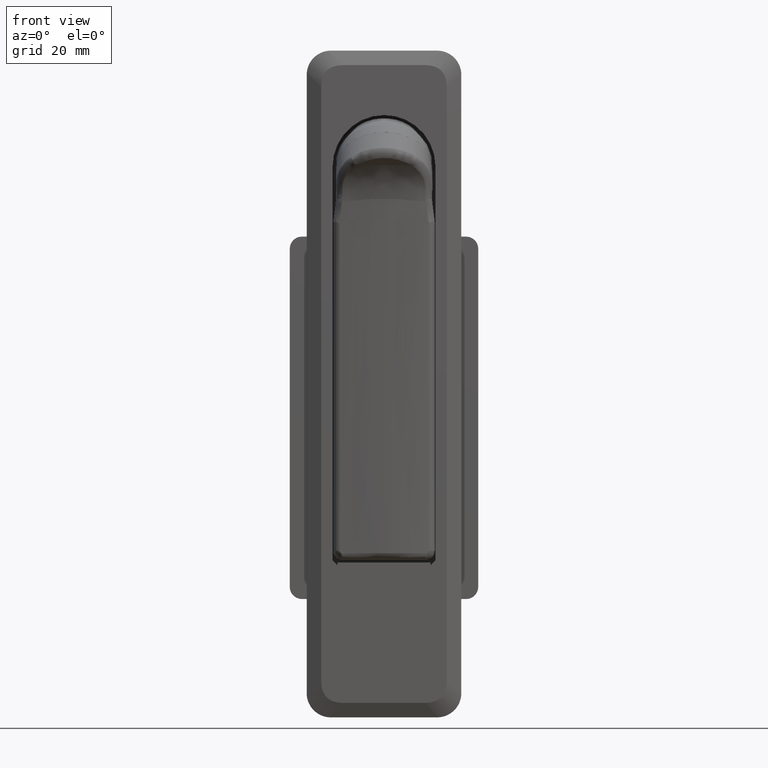
[diagram: clean part render]
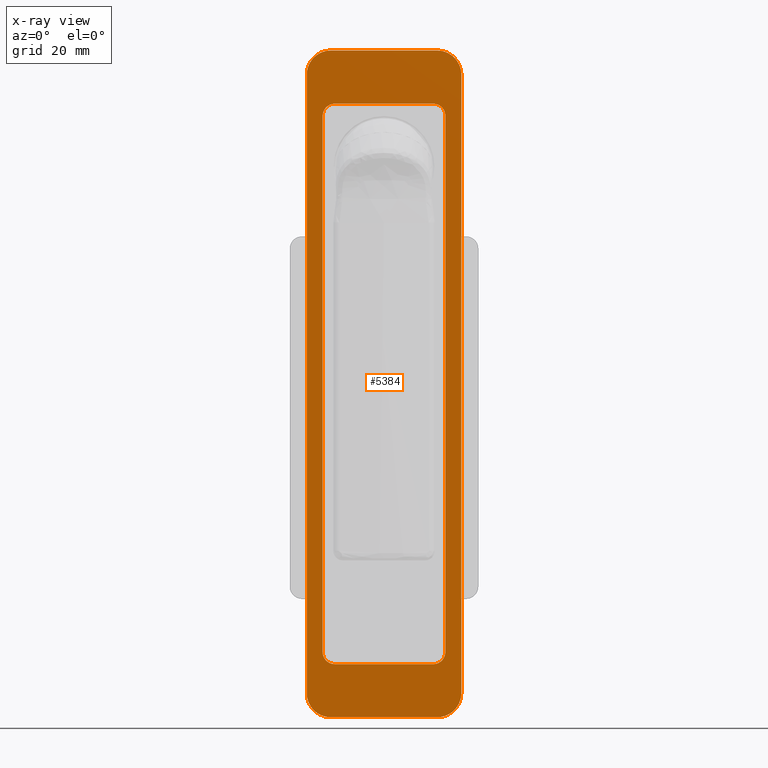
[diagram: x-ray — body ghosted, one internal face saturated and labeled with its STEP entity id]
A machine part, front view, then the same camera in x-ray: the body is ghosted and one INTERNAL B-rep face — a face not visible from any outside direction — is saturated and labeled: STEP entity #5384.
In plain terms, the highlighted face is a freeform B-spline surface patch.
Its self-contained STEP definition (entity closure, byte-faithful):
#5208=CARTESIAN_POINT('',(2.999999999999915,-17.595249787618670,30.893099732529219));
#5209=CARTESIAN_POINT('',(2.999999999999915,17.598250931920550,30.893099732529219));
#5210=CARTESIAN_POINT('',(2.999999999999915,-17.595249787618659,-120.893103433977700));
#5211=CARTESIAN_POINT('',(2.999999999999915,17.598250931920550,-120.893103433977700));
#5212=B_SPLINE_SURFACE_WITH_KNOTS('',1,1,((#5208,#5210),(#5209,#5211)),.UNSPECIFIED.,.F.,.F.,.U.,(2,2),(2,2),(0.0,35.193500719539223),(0.0,151.786203166506910),.UNSPECIFIED.);
#5213=CARTESIAN_POINT('',(2.999999999999890,11.0,24.0));
#5214=VERTEX_POINT('',#5213);
#5215=CARTESIAN_POINT('',(2.999999999999890,-10.997000000000000,24.0));
#5216=VERTEX_POINT('',#5215);
#5217=CARTESIAN_POINT('',(2.999999999999890,11.0,24.0));
#5218=CARTESIAN_POINT('',(2.999999999999890,-10.997000000000000,24.0));
#5219=QUASI_UNIFORM_CURVE('',1,(#5217,#5218),.UNSPECIFIED.,.F.,.U.);
#5220=EDGE_CURVE('',#5214,#5216,#5219,.T.);
#5221=ORIENTED_EDGE('',*,*,#5220,.F.);
#5222=CARTESIAN_POINT('',(2.999999999999890,16.0,19.0));
#5223=VERTEX_POINT('',#5222);
#5224=CARTESIAN_POINT('',(2.999999999999890,16.0,19.0));
#5225=CARTESIAN_POINT('',(2.999999999999889,16.000571567016330,19.613697073666000));
#5226=CARTESIAN_POINT('',(2.999999999999891,15.843671828743000,20.451873399650410));
#5227=CARTESIAN_POINT('',(2.999999999999892,15.359034720792231,21.492592761660799));
#5228=CARTESIAN_POINT('',(2.999999999999883,14.794906162483860,22.326103672136160));
#5229=CARTESIAN_POINT('',(2.999999999999884,13.851311290463631,23.192131924115259));
#5230=CARTESIAN_POINT('',(2.999999999999915,12.513399880389290,23.844938267273982));
#5231=CARTESIAN_POINT('',(2.999999999999855,11.511348883869161,24.000228408971729));
#5232=CARTESIAN_POINT('',(2.999999999999890,11.0,24.0));
#5233=B_SPLINE_CURVE_WITH_KNOTS('',3,(#5224,#5225,#5226,#5227,#5228,#5229,#5230,#5231,#5232),.UNSPECIFIED.,.F.,.U.,(4,1,1,1,1,1,4),(0.000000199399920,1.840786930647991,2.515760499670075,3.436181768674002,4.847402588958154,6.320053267888183,7.854030914395620),.UNSPECIFIED.);
#5234=EDGE_CURVE('',#5223,#5214,#5233,.T.);
#5235=ORIENTED_EDGE('',*,*,#5234,.F.);
#5236=CARTESIAN_POINT('',(2.999999999999890,16.0,-109.0));
#5237=VERTEX_POINT('',#5236);
#5238=CARTESIAN_POINT('',(2.999999999999890,16.0,-109.0));
#5239=CARTESIAN_POINT('',(2.999999999999890,16.0,19.0));
#5240=QUASI_UNIFORM_CURVE('',1,(#5238,#5239),.UNSPECIFIED.,.F.,.U.);
#5241=EDGE_CURVE('',#5237,#5223,#5240,.T.);
#5242=ORIENTED_EDGE('',*,*,#5241,.F.);
#5243=CARTESIAN_POINT('',(2.999999999999890,11.0,-114.0));
#5244=VERTEX_POINT('',#5243);
#5245=CARTESIAN_POINT('',(2.999999999999890,11.0,-114.0));
#5246=CARTESIAN_POINT('',(2.999999999999889,11.613683140174240,-114.000570364943400));
#5247=CARTESIAN_POINT('',(2.999999999999888,12.615456350106999,-113.813067655517400));
#5248=CARTESIAN_POINT('',(2.999999999999901,13.799719055128360,-113.189248925837700));
#5249=CARTESIAN_POINT('',(2.999999999999879,14.633165374511799,-112.487949782311200));
#5250=CARTESIAN_POINT('',(2.999999999999903,15.316893840324919,-111.611969548787900));
#5251=CARTESIAN_POINT('',(2.999999999999873,15.857546360165840,-110.431591287348700));
#5252=CARTESIAN_POINT('',(2.999999999999904,16.000252543264651,-109.511348914816790));
#5253=CARTESIAN_POINT('',(2.999999999999890,16.0,-109.0));
#5254=B_SPLINE_CURVE_WITH_KNOTS('',3,(#5245,#5246,#5247,#5248,#5249,#5250,#5251,#5252,#5253),.UNSPECIFIED.,.F.,.U.,(4,1,1,1,1,1,4),(0.000000199418378,1.840786930659601,3.006631394917318,3.988314212956000,5.092833224472594,6.320053267891053,7.854030914395530),.UNSPECIFIED.);
#5255=EDGE_CURVE('',#5244,#5237,#5254,.T.);
#5256=ORIENTED_EDGE('',*,*,#5255,.F.);
#5257=CARTESIAN_POINT('',(2.999999999999890,-10.997000000000000,-114.0));
#5258=VERTEX_POINT('',#5257);
#5259=CARTESIAN_POINT('',(2.999999999999890,-10.997000000000000,-114.0));
#5260=CARTESIAN_POINT('',(2.999999999999890,11.0,-114.0));
#5261=QUASI_UNIFORM_CURVE('',1,(#5259,#5260),.UNSPECIFIED.,.F.,.U.);
#5262=EDGE_CURVE('',#5258,#5244,#5261,.T.);
#5263=ORIENTED_EDGE('',*,*,#5262,.F.);
#5264=CARTESIAN_POINT('',(2.999999999999890,-15.997000000000000,-109.0));
#5265=VERTEX_POINT('',#5264);
#5266=CARTESIAN_POINT('',(2.999999999999890,-15.997000000000000,-109.0));
#5267=CARTESIAN_POINT('',(2.999999999999891,-15.997021715894251,-109.347696992782300));
#5268=CARTESIAN_POINT('',(2.999999999999883,-15.909324717325401,-110.186299708537600));
#5269=CARTESIAN_POINT('',(2.999999999999916,-15.455597871120331,-111.407321923718300));
#5270=CARTESIAN_POINT('',(2.999999999999871,-14.730019957922350,-112.385327279380600));
#5271=CARTESIAN_POINT('',(2.999999999999904,-13.988134641810969,-113.033086740821400));
#5272=CARTESIAN_POINT('',(2.999999999999857,-13.187717778156079,-113.533244322842290));
#5273=CARTESIAN_POINT('',(2.999999999999893,-12.183261165867560,-113.906572557972400));
#5274=CARTESIAN_POINT('',(2.999999999999899,-11.385606821046419,-114.000068123465700));
#5275=CARTESIAN_POINT('',(2.999999999999890,-10.997000000000000,-114.0));
#5276=B_SPLINE_CURVE_WITH_KNOTS('',3,(#5266,#5267,#5268,#5269,#5270,#5271,#5272,#5273,#5274,#5275),.UNSPECIFIED.,.F.,.U.,(4,1,1,1,1,1,1,4),(0.000000199356228,1.043109226488284,2.515760499639851,3.865716513117544,4.663289931144011,5.460993200000432,6.688213243428979,7.854030914395787),.UNSPECIFIED.);
#5277=EDGE_CURVE('',#5265,#5258,#5276,.T.);
#5278=ORIENTED_EDGE('',*,*,#5277,.F.);
#5279=CARTESIAN_POINT('',(2.999999999999890,-15.997000000000000,19.0));
#5280=VERTEX_POINT('',#5279);
#5281=CARTESIAN_POINT('',(2.999999999999890,-15.997000000000000,19.0));
#5282=CARTESIAN_POINT('',(2.999999999999890,-15.997000000000000,-109.0));
#5283=QUASI_UNIFORM_CURVE('',1,(#5281,#5282),.UNSPECIFIED.,.F.,.U.);
#5284=EDGE_CURVE('',#5280,#5265,#5283,.T.);
#5285=ORIENTED_EDGE('',*,*,#5284,.F.);
#5286=CARTESIAN_POINT('',(2.999999999999890,-10.997000000000000,24.0));
#5287=CARTESIAN_POINT('',(2.999999999999884,-11.344703498697189,24.000045203129261));
#5288=CARTESIAN_POINT('',(2.999999999999903,-12.040093071190601,23.927187666277241));
#5289=CARTESIAN_POINT('',(2.999999999999878,-12.998823949310120,23.616986556235510));
#5290=CARTESIAN_POINT('',(2.999999999999908,-13.859586562028150,23.136288176945129));
#5291=CARTESIAN_POINT('',(2.999999999999882,-14.724641483224620,22.408655338720369));
#5292=CARTESIAN_POINT('',(2.999999999999890,-15.451376589656460,21.403288224507008));
#5293=CARTESIAN_POINT('',(2.999999999999887,-15.903557070495349,20.186248837626021));
#5294=CARTESIAN_POINT('',(2.999999999999927,-15.997068159127521,19.388607070521431));
#5295=CARTESIAN_POINT('',(2.999999999999890,-15.997000000000000,19.0));
#5296=B_SPLINE_CURVE_WITH_KNOTS('',3,(#5286,#5287,#5288,#5289,#5290,#5291,#5292,#5293,#5294,#5295),.UNSPECIFIED.,.F.,.U.,(4,1,1,1,1,1,1,4),(0.000000199413143,1.043109226536800,2.086227455559389,3.006631394915029,3.988314212953721,5.460993200015793,6.688213243436062,7.854030914395609),.UNSPECIFIED.);
#5297=EDGE_CURVE('',#5216,#5280,#5296,.T.);
#5298=ORIENTED_EDGE('',*,*,#5297,.F.);
#5299=EDGE_LOOP('',(#5221,#5235,#5242,#5256,#5263,#5278,#5285,#5298));
#5300=FACE_OUTER_BOUND('',#5299,.T.);
#5301=CARTESIAN_POINT('',(2.999999999999890,12.699999999999999,10.500000000000000));
#5302=VERTEX_POINT('',#5301);
#5303=CARTESIAN_POINT('',(2.999999999999890,10.199999999999999,13.0));
#5304=VERTEX_POINT('',#5303);
#5305=CARTESIAN_POINT('',(2.999999999999890,12.699999999999999,10.500000000000000));
#5306=CARTESIAN_POINT('',(2.999999999999894,12.700286156286070,10.806847697501221));
#5307=CARTESIAN_POINT('',(2.999999999999883,12.608413389957869,11.297479798846940));
#5308=CARTESIAN_POINT('',(2.999999999999908,12.267269878396251,11.955104203656409));
#5309=CARTESIAN_POINT('',(2.999999999999855,11.822976324135871,12.445353784728240));
#5310=CARTESIAN_POINT('',(2.999999999999944,11.120051825457519,12.878456866222120));
#5311=CARTESIAN_POINT('',(2.999999999999865,10.547794518470930,13.000481054154370));
#5312=CARTESIAN_POINT('',(2.999999999999890,10.199999999999999,13.0));
#5313=B_SPLINE_CURVE_WITH_KNOTS('',3,(#5305,#5306,#5307,#5308,#5309,#5310,#5311,#5312),.UNSPECIFIED.,.F.,.U.,(4,1,1,1,1,4),(0.000000307277844,0.920409195331466,1.472666041619795,2.208978370713540,2.883953722124625,3.927089360864170),.UNSPECIFIED.);
#5314=EDGE_CURVE('',#5302,#5304,#5313,.T.);
#5315=ORIENTED_EDGE('',*,*,#5314,.T.);
#5316=CARTESIAN_POINT('',(2.999999999999890,-10.199999999999999,13.0));
#5317=VERTEX_POINT('',#5316);
#5318=CARTESIAN_POINT('',(2.999999999999890,-10.199999999999999,13.0));
#5319=CARTESIAN_POINT('',(2.999999999999890,10.199999999999999,13.0));
#5320=QUASI_UNIFORM_CURVE('',1,(#5318,#5319),.UNSPECIFIED.,.F.,.U.);
#5321=EDGE_CURVE('',#5317,#5304,#5320,.T.);
#5322=ORIENTED_EDGE('',*,*,#5321,.F.);
#5323=CARTESIAN_POINT('',(2.999999999999890,-12.699999999999999,10.500000000000000));
#5324=VERTEX_POINT('',#5323);
#5325=CARTESIAN_POINT('',(2.999999999999890,-10.199999999999999,13.0));
#5326=CARTESIAN_POINT('',(2.999999999999889,-10.445450289942899,13.000115702739340));
#5327=CARTESIAN_POINT('',(2.999999999999892,-10.854441892933970,12.939244491147340));
#5328=CARTESIAN_POINT('',(2.999999999999888,-11.405093546787070,12.711154743853150));
#5329=CARTESIAN_POINT('',(2.999999999999910,-11.846276030615931,12.408487183708489));
#5330=CARTESIAN_POINT('',(2.999999999999872,-12.210383576307549,12.016478856462500));
#5331=CARTESIAN_POINT('',(2.999999999999903,-12.580328746101930,11.399548463594970));
#5332=CARTESIAN_POINT('',(2.999999999999893,-12.700602564551691,10.868289285917630));
#5333=CARTESIAN_POINT('',(2.999999999999890,-12.699999999999999,10.500000000000000));
#5334=B_SPLINE_CURVE_WITH_KNOTS('',3,(#5325,#5326,#5327,#5328,#5329,#5330,#5331,#5332,#5333),.UNSPECIFIED.,.F.,.U.,(4,1,1,1,1,1,4),(0.000000307277673,0.736327136472622,1.227218004876058,1.779505753769558,2.331668274613803,2.822586945455710,3.927089360864169),.UNSPECIFIED.);
#5335=EDGE_CURVE('',#5317,#5324,#5334,.T.);
#5336=ORIENTED_EDGE('',*,*,#5335,.T.);
#5337=CARTESIAN_POINT('',(2.999999999999890,-12.699999999999999,-100.500000000000000));
#5338=VERTEX_POINT('',#5337);
#5339=CARTESIAN_POINT('',(2.999999999999890,-12.699999999999999,-100.500000000000000));
#5340=CARTESIAN_POINT('',(2.999999999999890,-12.699999999999999,10.500000000000000));
#5341=QUASI_UNIFORM_CURVE('',1,(#5339,#5340),.UNSPECIFIED.,.F.,.U.);
#5342=EDGE_CURVE('',#5338,#5324,#5341,.T.);
#5343=ORIENTED_EDGE('',*,*,#5342,.F.);
#5344=CARTESIAN_POINT('',(2.999999999999890,-10.199999999999999,-103.0));
#5345=VERTEX_POINT('',#5344);
#5346=CARTESIAN_POINT('',(2.999999999999890,-12.699999999999999,-100.500000000000000));
#5347=CARTESIAN_POINT('',(2.999999999999889,-12.700196089742949,-100.786359148872710));
#5348=CARTESIAN_POINT('',(2.999999999999891,-12.600547396545810,-101.358951092191700));
#5349=CARTESIAN_POINT('',(2.999999999999889,-12.242573141310141,-101.991019926426010));
#5350=CARTESIAN_POINT('',(2.999999999999893,-11.726379236834950,-102.520063014179700));
#5351=CARTESIAN_POINT('',(2.999999999999881,-11.079473749415699,-102.897093319818300));
#5352=CARTESIAN_POINT('',(2.999999999999894,-10.486344360759141,-103.000156179832100));
#5353=CARTESIAN_POINT('',(2.999999999999890,-10.199999999999999,-103.0));
#5354=B_SPLINE_CURVE_WITH_KNOTS('',3,(#5346,#5347,#5348,#5349,#5350,#5351,#5352,#5353),.UNSPECIFIED.,.F.,.U.,(4,1,1,1,1,4),(0.000000307283072,0.859042418666348,1.718111297431606,2.147583914375135,3.068047249480768,3.927089360864164),.UNSPECIFIED.);
#5355=EDGE_CURVE('',#5338,#5345,#5354,.T.);
#5356=ORIENTED_EDGE('',*,*,#5355,.T.);
#5357=CARTESIAN_POINT('',(2.999999999999890,10.199999999999999,-103.0));
#5358=VERTEX_POINT('',#5357);
#5359=CARTESIAN_POINT('',(2.999999999999890,10.199999999999999,-103.0));
#5360=CARTESIAN_POINT('',(2.999999999999890,-10.199999999999999,-103.0));
#5361=QUASI_UNIFORM_CURVE('',1,(#5359,#5360),.UNSPECIFIED.,.F.,.U.);
#5362=EDGE_CURVE('',#5358,#5345,#5361,.T.);
#5363=ORIENTED_EDGE('',*,*,#5362,.F.);
#5364=CARTESIAN_POINT('',(2.999999999999890,12.699999999999999,-100.500000000000000));
#5365=VERTEX_POINT('',#5364);
#5366=CARTESIAN_POINT('',(2.999999999999890,10.199999999999999,-103.0));
#5367=CARTESIAN_POINT('',(2.999999999999889,10.547786050224280,-103.000466951493100));
#5368=CARTESIAN_POINT('',(2.999999999999892,11.140529219340010,-102.874140440687200));
#5369=CARTESIAN_POINT('',(2.999999999999892,11.839264854564631,-102.431653230120300));
#5370=CARTESIAN_POINT('',(2.999999999999888,12.317792411749720,-101.890439624833700));
#5371=CARTESIAN_POINT('',(2.999999999999890,12.627160137232970,-101.236276102562300));
#5372=CARTESIAN_POINT('',(2.999999999999888,12.700098684013099,-100.745445244113300));
#5373=CARTESIAN_POINT('',(2.999999999999890,12.699999999999999,-100.500000000000000));
#5374=B_SPLINE_CURVE_WITH_KNOTS('',3,(#5366,#5367,#5368,#5369,#5370,#5371,#5372,#5373),.UNSPECIFIED.,.F.,.U.,(4,1,1,1,1,4),(0.000000307272356,1.043135946014278,1.779505753768309,2.454423626522193,3.190762531669307,3.927089360864156),.UNSPECIFIED.);
#5375=EDGE_CURVE('',#5358,#5365,#5374,.T.);
#5376=ORIENTED_EDGE('',*,*,#5375,.T.);
#5377=CARTESIAN_POINT('',(2.999999999999890,12.699999999999999,10.500000000000000));
#5378=CARTESIAN_POINT('',(2.999999999999890,12.699999999999999,-100.500000000000000));
#5379=QUASI_UNIFORM_CURVE('',1,(#5377,#5378),.UNSPECIFIED.,.F.,.U.);
#5380=EDGE_CURVE('',#5302,#5365,#5379,.T.);
#5381=ORIENTED_EDGE('',*,*,#5380,.F.);
#5382=EDGE_LOOP('',(#5315,#5322,#5336,#5343,#5356,#5363,#5376,#5381));
#5383=FACE_BOUND('',#5382,.T.);
#5384=ADVANCED_FACE('',(#5300,#5383),#5212,.T.);